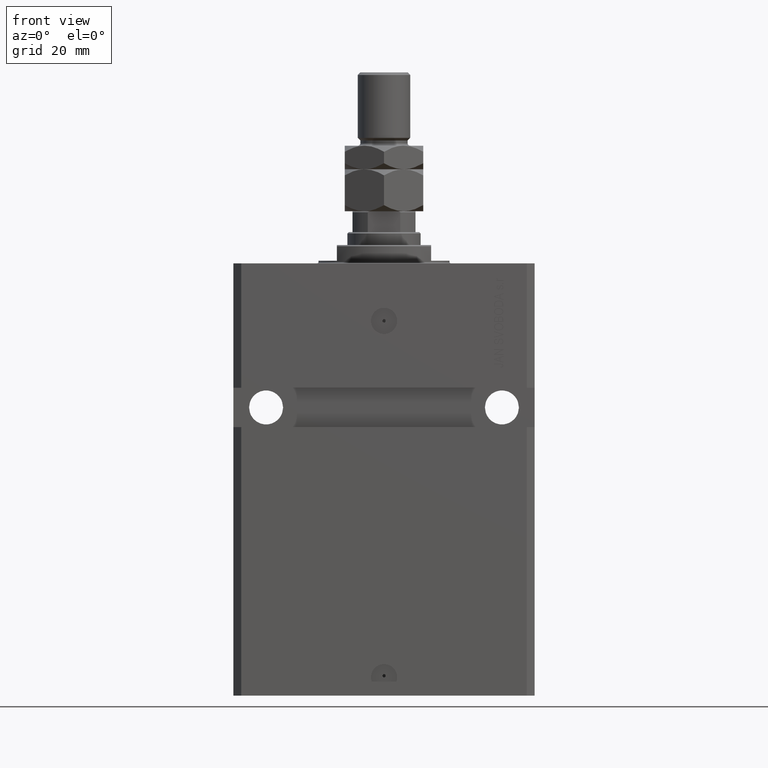
[diagram: clean part render]
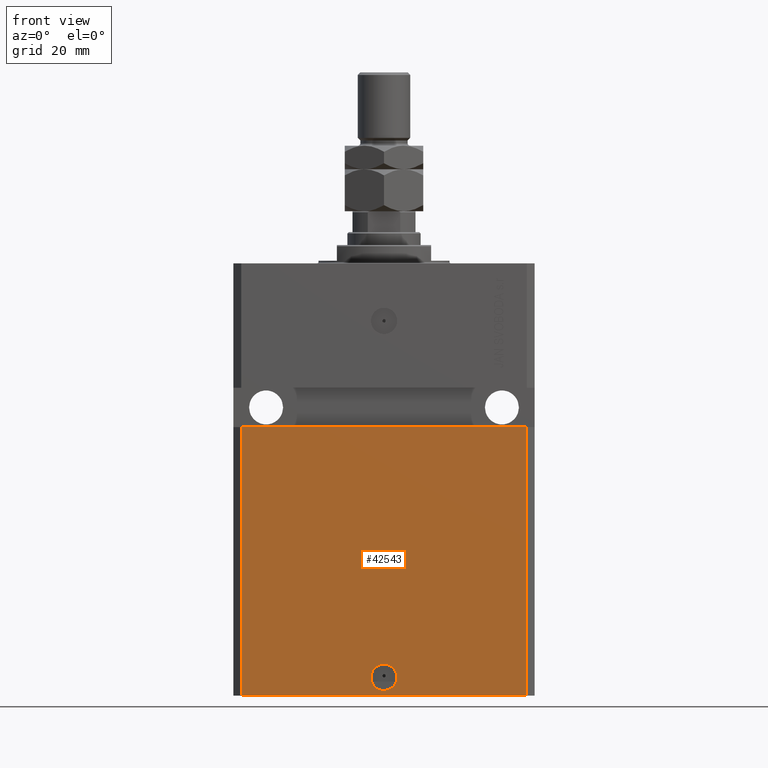
[diagram: same view with one face highlighted and labeled with its STEP entity id]
A machine part, front view. The second image highlights one B-rep face of the part: STEP entity #42543.
In plain terms, the highlighted planar face has unit normal (0, -1, 0).
Its self-contained STEP definition (entity closure, byte-faithful):
#1820 = EDGE_CURVE ( 'NONE', #43508, #14277, #35409, .T. ) ;
#2953 = ORIENTED_EDGE ( 'NONE', *, *, #10167, .F. ) ;
#3477 = VERTEX_POINT ( 'NONE', #47533 ) ;
#4900 = ORIENTED_EDGE ( 'NONE', *, *, #47583, .T. ) ;
#6179 = CARTESIAN_POINT ( 'NONE',  ( -54.50000000000000711, -45.00000000000000000, -165.0000000000000000 ) ) ;
#6805 = DIRECTION ( 'NONE',  ( 1.000000000000000000, 1.273191542001326317E-16, 0.000000000000000000 ) ) ;
#7805 = DIRECTION ( 'NONE',  ( 1.176083712526788232E-16, -1.000000000000000000, 0.000000000000000000 ) ) ;
#7999 = ORIENTED_EDGE ( 'NONE', *, *, #39648, .T. ) ;
#8884 = VERTEX_POINT ( 'NONE', #6179 ) ;
#10167 = EDGE_CURVE ( 'NONE', #3477, #40090, #43343, .T. ) ;
#10449 = LINE ( 'NONE', #25073, #19861 ) ;
#10950 = AXIS2_PLACEMENT_3D ( 'NONE', #14129, #32354, #46674 ) ;
#11090 = EDGE_CURVE ( 'NONE', #8884, #43508, #32384, .T. ) ;
#11096 = ORIENTED_EDGE ( 'NONE', *, *, #1820, .F. ) ;
#13403 = CARTESIAN_POINT ( 'NONE',  ( -54.50000000000000711, -45.00000000000000000, -165.0000000000000000 ) ) ;
#13694 = CARTESIAN_POINT ( 'NONE',  ( 54.50000000000000711, -44.99999999999998579, -62.49999999999999289 ) ) ;
#14129 = CARTESIAN_POINT ( 'NONE',  ( 5.729361939005967538E-15, -44.99999999999999289, -158.0000000000000000 ) ) ;
#14277 = VERTEX_POINT ( 'NONE', #13694 ) ;
#17189 = DIRECTION ( 'NONE',  ( 1.000000000000000000, 1.206764157201257045E-16, 6.033820786006285224E-17 ) ) ;
#18227 = VECTOR ( 'NONE', #17189, 1000.000000000000000 ) ;
#18743 = CIRCLE ( 'NONE', #10950, 5.000000000000006217 ) ;
#19145 = LINE ( 'NONE', #26207, #29371 ) ;
#19861 = VECTOR ( 'NONE', #39627, 1000.000000000000000 ) ;
#21181 = FACE_OUTER_BOUND ( 'NONE', #39475, .T. ) ;
#23776 = CARTESIAN_POINT ( 'NONE',  ( -57.50000000000002132, -45.00000000000000000, -62.50000000000000000 ) ) ;
#24409 = CARTESIAN_POINT ( 'NONE',  ( 5.000000000000012434, -44.99999999999999289, -158.0000000000000000 ) ) ;
#25073 = CARTESIAN_POINT ( 'NONE',  ( -54.50000000000000711, -45.00000000000000000, -165.0000000000000000 ) ) ;
#26207 = CARTESIAN_POINT ( 'NONE',  ( 54.50000000000000711, -44.99999999999998579, -165.0000000000000000 ) ) ;
#26288 = AXIS2_PLACEMENT_3D ( 'NONE', #44481, #7805, #30173 ) ;
#26318 = VECTOR ( 'NONE', #28742, 1000.000000000000000 ) ;
#26451 = DIRECTION ( 'NONE',  ( 0.000000000000000000, 0.000000000000000000, 1.000000000000000000 ) ) ;
#26586 = CARTESIAN_POINT ( 'NONE',  ( -54.50000000000000711, -45.00000000000000000, -62.50000000000000000 ) ) ;
#28676 = ORIENTED_EDGE ( 'NONE', *, *, #30484, .F. ) ;
#28742 = DIRECTION ( 'NONE',  ( 0.000000000000000000, 0.000000000000000000, 1.000000000000000000 ) ) ;
#29371 = VECTOR ( 'NONE', #26451, 1000.000000000000000 ) ;
#30173 = DIRECTION ( 'NONE',  ( 1.000000000000000000, 0.000000000000000000, 0.000000000000000000 ) ) ;
#30484 = EDGE_CURVE ( 'NONE', #40090, #3477, #18743, .T. ) ;
#32354 = DIRECTION ( 'NONE',  ( 1.176083712526788232E-16, -1.000000000000000000, 0.000000000000000000 ) ) ;
#32384 = LINE ( 'NONE', #40134, #26318 ) ;
#33752 = AXIS2_PLACEMENT_3D ( 'NONE', #13403, #35987, #6805 ) ;
#35409 = LINE ( 'NONE', #23776, #18227 ) ;
#35853 = EDGE_LOOP ( 'NONE', ( #28676, #2953 ) ) ;
#35987 = DIRECTION ( 'NONE',  ( 1.273191542001326317E-16, -1.000000000000000000, 0.000000000000000000 ) ) ;
#36339 = CARTESIAN_POINT ( 'NONE',  ( 54.50000000000000711, -44.99999999999998579, -165.0000000000000000 ) ) ;
#39133 = ORIENTED_EDGE ( 'NONE', *, *, #11090, .F. ) ;
#39475 = EDGE_LOOP ( 'NONE', ( #11096, #39133, #7999, #4900 ) ) ;
#39627 = DIRECTION ( 'NONE',  ( 1.000000000000000000, 1.273191542001326317E-16, 0.000000000000000000 ) ) ;
#39648 = EDGE_CURVE ( 'NONE', #8884, #42407, #10449, .T. ) ;
#40090 = VERTEX_POINT ( 'NONE', #24409 ) ;
#40134 = CARTESIAN_POINT ( 'NONE',  ( -54.50000000000000711, -45.00000000000000000, -165.0000000000000000 ) ) ;
#42407 = VERTEX_POINT ( 'NONE', #36339 ) ;
#42543 = ADVANCED_FACE ( 'NONE', ( #46661, #21181 ), #43736, .T. ) ;
#43343 = CIRCLE ( 'NONE', #26288, 5.000000000000006217 ) ;
#43508 = VERTEX_POINT ( 'NONE', #26586 ) ;
#43736 = PLANE ( 'NONE',  #33752 ) ;
#44481 = CARTESIAN_POINT ( 'NONE',  ( 5.729361939005967538E-15, -44.99999999999999289, -158.0000000000000000 ) ) ;
#46661 = FACE_BOUND ( 'NONE', #35853, .T. ) ;
#46674 = DIRECTION ( 'NONE',  ( 1.000000000000000000, 0.000000000000000000, 0.000000000000000000 ) ) ;
#47533 = CARTESIAN_POINT ( 'NONE',  ( -5.000000000000000000, -44.99999999999999289, -158.0000000000000000 ) ) ;
#47583 = EDGE_CURVE ( 'NONE', #42407, #14277, #19145, .T. ) ;